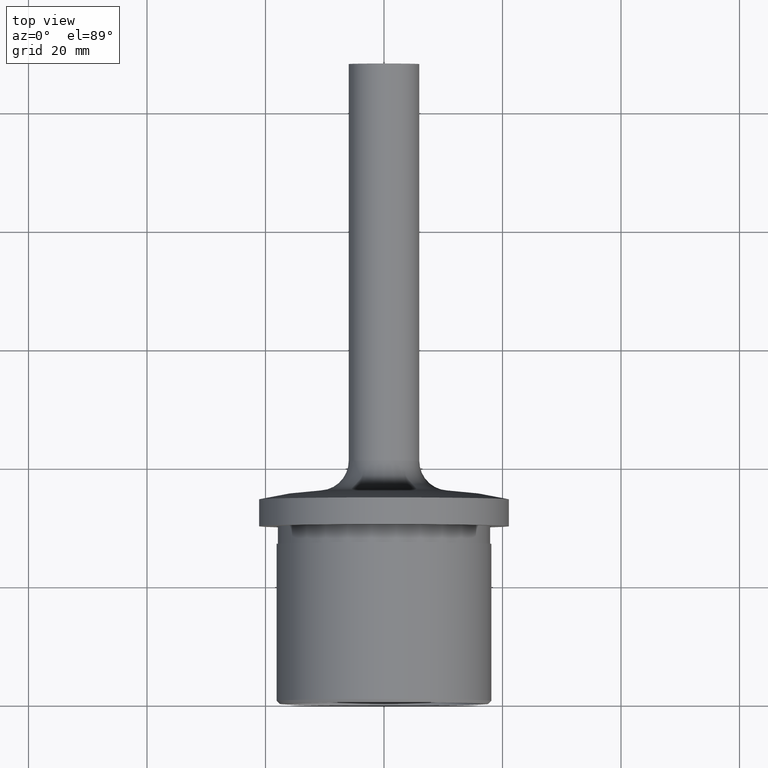
[diagram: clean part render]
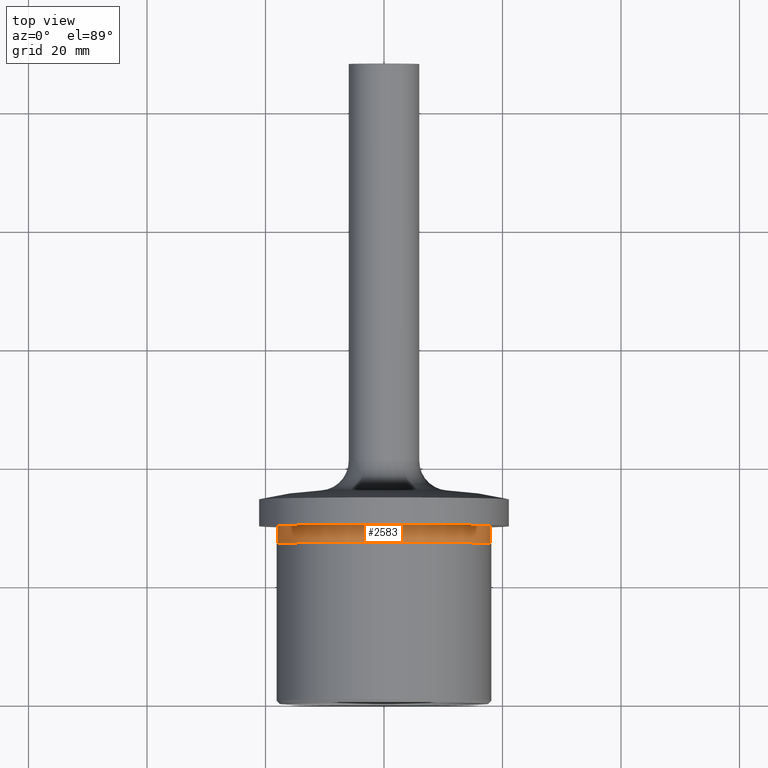
[diagram: same view with one face highlighted and labeled with its STEP entity id]
A machine part, top view. The second image highlights one B-rep face of the part: STEP entity #2583.
In plain terms, the highlighted cylindrical surface (bore or boss wall) has radius 17.95 mm, axis along (-0, -1, -0).
Its self-contained STEP definition (entity closure, byte-faithful):
#456 = CARTESIAN_POINT ( 'NONE',  ( 0.000000000000000000, 27.00000000000000000, -17.95000000000000284 ) ) ;
#2583 = ADVANCED_FACE ( 'NONE', ( #17716, #14199 ), #8797, .T. ) ;
#2889 = DIRECTION ( 'NONE',  ( 0.000000000000000000, 0.000000000000000000, -1.000000000000000000 ) ) ;
#3323 = AXIS2_PLACEMENT_3D ( 'NONE', #8176, #8101, #2889 ) ;
#3873 = VERTEX_POINT ( 'NONE', #456 ) ;
#6134 = AXIS2_PLACEMENT_3D ( 'NONE', #15586, #19134, #6829 ) ;
#6651 = CARTESIAN_POINT ( 'NONE',  ( 0.000000000000000000, 27.00000000000000000, 0.000000000000000000 ) ) ;
#6829 = DIRECTION ( 'NONE',  ( 0.000000000000000000, 0.000000000000000000, -1.000000000000000000 ) ) ;
#8101 = DIRECTION ( 'NONE',  ( -0.000000000000000000, -1.000000000000000000, -0.000000000000000000 ) ) ;
#8176 = CARTESIAN_POINT ( 'NONE',  ( 0.000000000000000000, 32.00000000000000000, 0.000000000000000000 ) ) ;
#8797 = CYLINDRICAL_SURFACE ( 'NONE', #3323, 17.94999999999999929 ) ;
#9746 = CIRCLE ( 'NONE', #6134, 17.94999999999999929 ) ;
#10650 = EDGE_CURVE ( 'NONE', #12507, #12507, #9746, .T. ) ;
#11521 = ORIENTED_EDGE ( 'NONE', *, *, #18749, .F. ) ;
#12504 = AXIS2_PLACEMENT_3D ( 'NONE', #6651, #15479, #15549 ) ;
#12507 = VERTEX_POINT ( 'NONE', #17650 ) ;
#13870 = EDGE_LOOP ( 'NONE', ( #11521 ) ) ;
#13937 = CIRCLE ( 'NONE', #12504, 17.95000000000000284 ) ;
#14199 = FACE_OUTER_BOUND ( 'NONE', #13870, .T. ) ;
#14931 = EDGE_LOOP ( 'NONE', ( #21628 ) ) ;
#15479 = DIRECTION ( 'NONE',  ( -0.000000000000000000, -1.000000000000000000, -0.000000000000000000 ) ) ;
#15549 = DIRECTION ( 'NONE',  ( 0.000000000000000000, 0.000000000000000000, -1.000000000000000000 ) ) ;
#15586 = CARTESIAN_POINT ( 'NONE',  ( 0.000000000000000000, 30.00000000000000000, 0.000000000000000000 ) ) ;
#17650 = CARTESIAN_POINT ( 'NONE',  ( 0.000000000000000000, 30.00000000000000000, -17.94999999999999929 ) ) ;
#17716 = FACE_OUTER_BOUND ( 'NONE', #14931, .T. ) ;
#18749 = EDGE_CURVE ( 'NONE', #3873, #3873, #13937, .T. ) ;
#19134 = DIRECTION ( 'NONE',  ( -0.000000000000000000, -1.000000000000000000, -0.000000000000000000 ) ) ;
#21628 = ORIENTED_EDGE ( 'NONE', *, *, #10650, .T. ) ;